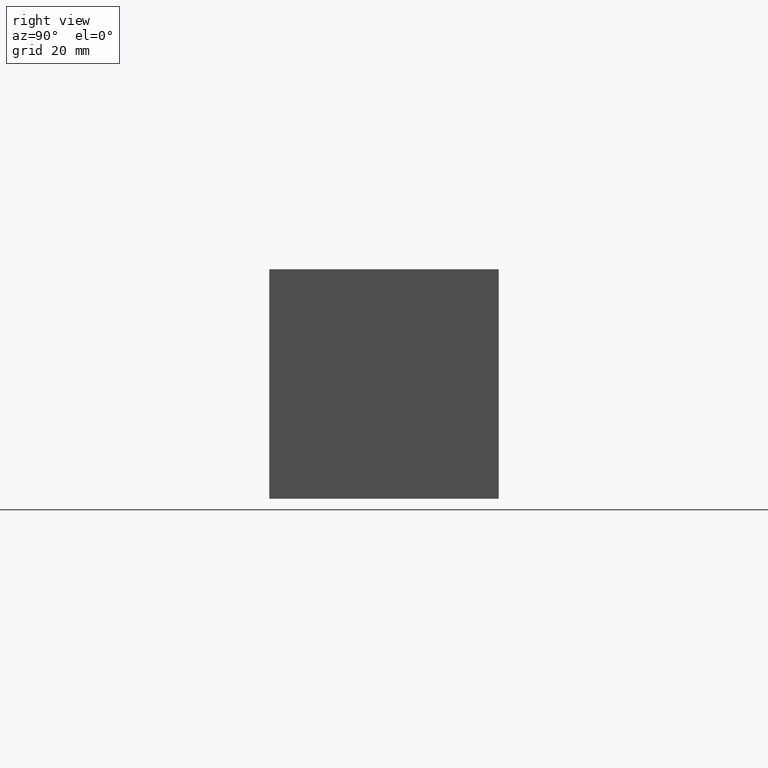
[diagram: clean part render]
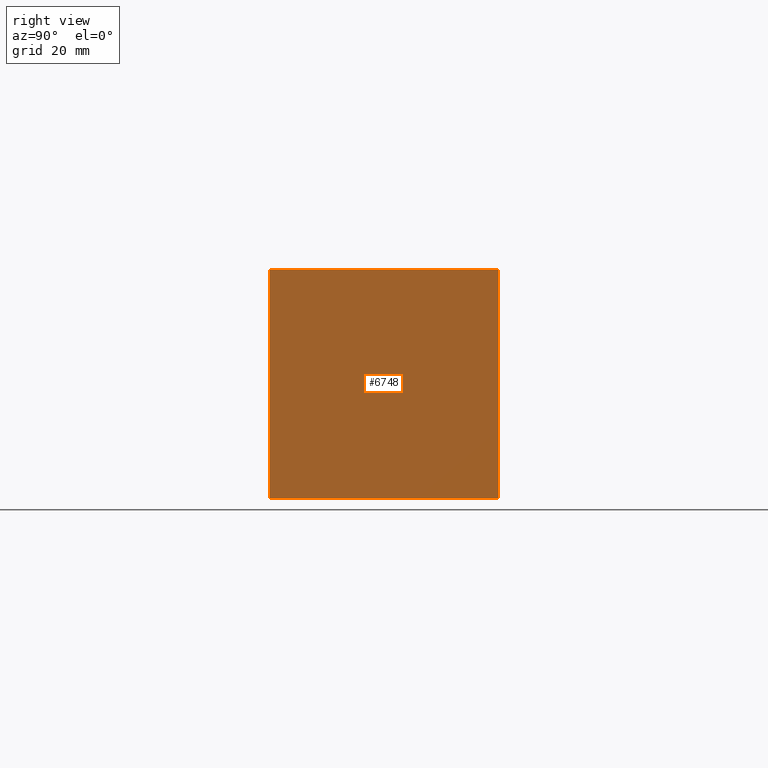
[diagram: same view with one face highlighted and labeled with its STEP entity id]
A machine part, right view. The second image highlights one B-rep face of the part: STEP entity #6748.
In plain terms, the highlighted planar face has unit normal (1, 0, 0).
Its self-contained STEP definition (entity closure, byte-faithful):
#361=PLANE('',#7066);
#701=FACE_OUTER_BOUND('',#1080,.T.);
#1080=EDGE_LOOP('',(#5990,#5991,#5992,#5993));
#1345=LINE('',#10397,#2012);
#1755=LINE('',#11500,#2422);
#1756=LINE('',#11503,#2423);
#1757=LINE('',#11504,#2424);
#2012=VECTOR('',#7455,10.);
#2422=VECTOR('',#8335,10.);
#2423=VECTOR('',#8338,10.);
#2424=VECTOR('',#8339,10.);
#2911=VERTEX_POINT('',#10394);
#2912=VERTEX_POINT('',#10396);
#3242=VERTEX_POINT('',#11498);
#3243=VERTEX_POINT('',#11502);
#3677=EDGE_CURVE('',#2911,#2912,#1345,.T.);
#4165=EDGE_CURVE('',#3242,#2912,#1755,.T.);
#4166=EDGE_CURVE('',#3243,#3242,#1756,.T.);
#4167=EDGE_CURVE('',#3243,#2911,#1757,.T.);
#5990=ORIENTED_EDGE('',*,*,#4166,.T.);
#5991=ORIENTED_EDGE('',*,*,#4165,.T.);
#5992=ORIENTED_EDGE('',*,*,#3677,.F.);
#5993=ORIENTED_EDGE('',*,*,#4167,.F.);
#6748=ADVANCED_FACE('',(#701),#361,.T.);
#7066=AXIS2_PLACEMENT_3D('',#11501,#8336,#8337);
#7455=DIRECTION('',(0.,1.,0.));
#8335=DIRECTION('',(0.,0.,1.));
#8336=DIRECTION('center_axis',(1.,0.,0.));
#8337=DIRECTION('ref_axis',(0.,1.,0.));
#8338=DIRECTION('',(0.,1.,0.));
#8339=DIRECTION('',(0.,0.,1.));
#10394=CARTESIAN_POINT('',(127.,0.,44.45));
#10396=CARTESIAN_POINT('',(127.,44.45,44.45));
#10397=CARTESIAN_POINT('',(127.,0.,44.45));
#11498=CARTESIAN_POINT('',(127.,44.45,0.));
#11500=CARTESIAN_POINT('',(127.,44.45,0.));
#11501=CARTESIAN_POINT('Origin',(127.,0.,0.));
#11502=CARTESIAN_POINT('',(127.,0.,0.));
#11503=CARTESIAN_POINT('',(127.,0.,0.));
#11504=CARTESIAN_POINT('',(127.,0.,0.));